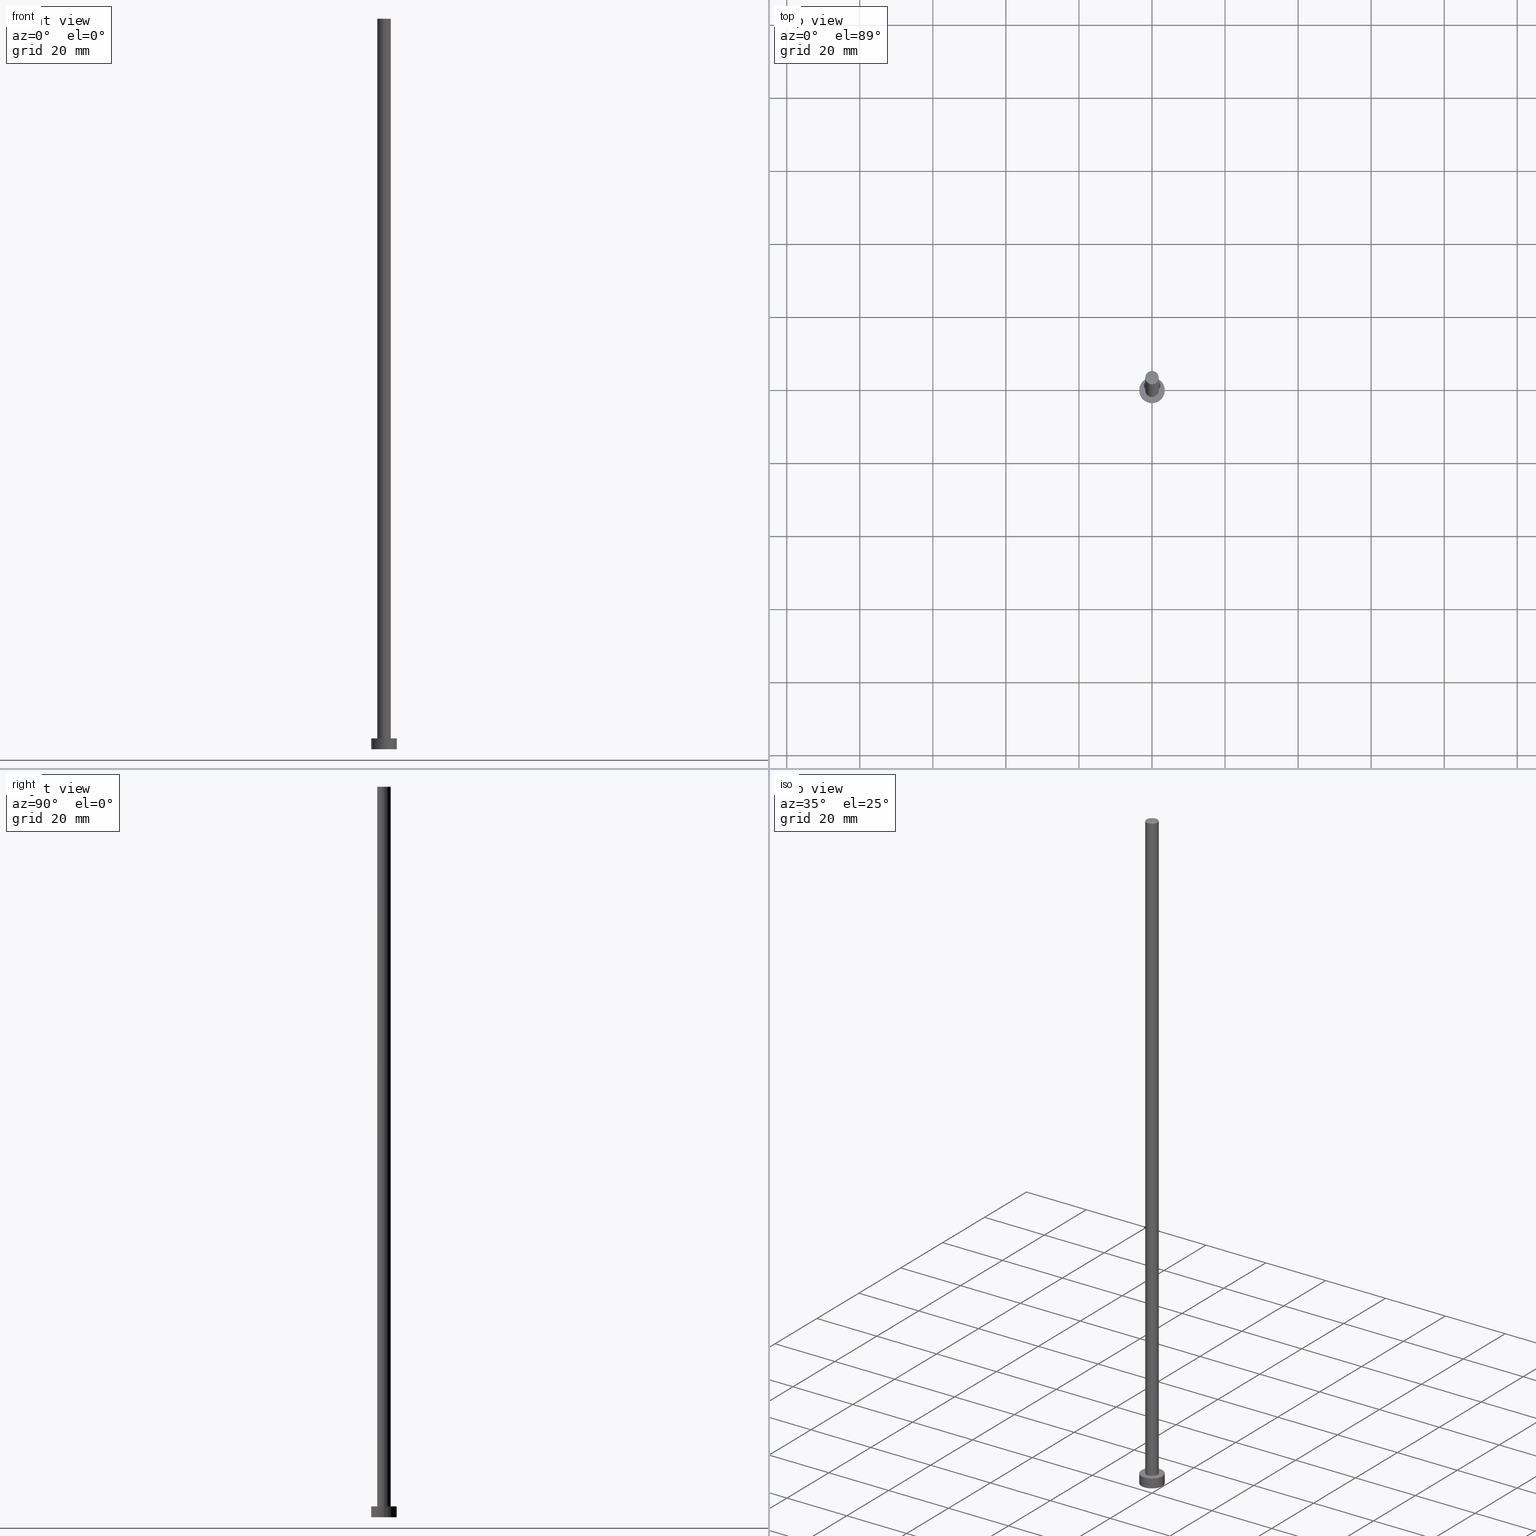
[diagram: canonical four-view strip — front | top / right | iso, engineering-drawing reading convention]
A machine part, canonical four-view strip (front | top / right | iso — engineering-drawing reading convention). The complete STEP part file that produces these views, byte-faithful:
ISO-10303-21;
HEADER;
FILE_DESCRIPTION (( 'STEP AP203' ),
    '1' );
FILE_NAME ('f957.STEP',
    '2026-02-06T12:42:58',
    ( '' ),
    ( '' ),
    'SwSTEP 2.0',
    'SolidWorks 2019',
    '' );
FILE_SCHEMA (( 'CONFIG_CONTROL_DESIGN' ));
ENDSEC;

DATA;
#1 = CALENDAR_DATE ( 2026, 6, 2 ) ;
#2 = APPLICATION_PROTOCOL_DEFINITION ( 'international standard', 'config_control_design', 1994, #201 ) ;
#3 = DIRECTION ( 'NONE',  ( -0.000000000000000000, -0.000000000000000000, -1.000000000000000000 ) ) ;
#4 = DIRECTION ( 'NONE',  ( 1.000000000000000000, 0.000000000000000000, 0.000000000000000000 ) ) ;
#5 =( GEOMETRIC_REPRESENTATION_CONTEXT ( 3 ) GLOBAL_UNCERTAINTY_ASSIGNED_CONTEXT ( ( #173 ) ) GLOBAL_UNIT_ASSIGNED_CONTEXT ( ( #208, #89, #84 ) ) REPRESENTATION_CONTEXT ( 'NONE', 'WORKASPACE' ) );
#6 = AXIS2_PLACEMENT_3D ( 'NONE', #113, #58, #250 ) ;
#7 = EDGE_CURVE ( 'NONE', #94, #248, #81, .T. ) ;
#8 = LINE ( 'NONE', #86, #66 ) ;
#9 = DIRECTION ( 'NONE',  ( 1.000000000000000000, 0.000000000000000000, 0.000000000000000000 ) ) ;
#10 = ORIENTED_EDGE ( 'NONE', *, *, #97, .T. ) ;
#11 = DATE_AND_TIME ( #159, #211 ) ;
#12 = ORIENTED_EDGE ( 'NONE', *, *, #44, .T. ) ;
#13 = FACE_OUTER_BOUND ( 'NONE', #54, .T. ) ;
#14 = ORIENTED_EDGE ( 'NONE', *, *, #180, .F. ) ;
#15 = EDGE_CURVE ( 'NONE', #126, #94, #8, .T. ) ;
#16 = CARTESIAN_POINT ( 'NONE',  ( 0.000000000000000000, 0.000000000000000000, 0.000000000000000000 ) ) ;
#17 = ORIENTED_EDGE ( 'NONE', *, *, #180, .T. ) ;
#18 = FACE_BOUND ( 'NONE', #129, .T. ) ;
#19 = DIRECTION ( 'NONE',  ( 0.000000000000000000, 0.000000000000000000, 1.000000000000000000 ) ) ;
#20 = APPLICATION_CONTEXT ( 'configuration controlled 3d designs of mechanical parts and assemblies' ) ;
#21 = CIRCLE ( 'NONE', #187, 3.500000000000000444 ) ;
#22 = DATE_TIME_ROLE ( 'classification_date' ) ;
#23 = APPROVAL_PERSON_ORGANIZATION ( #40, #124, #99 ) ;
#24 = APPROVAL_STATUS ( 'not_yet_approved' ) ;
#25 = MECHANICAL_CONTEXT ( 'NONE', #20, 'mechanical' ) ;
#26 = APPROVAL_PERSON_ORGANIZATION ( #31, #249, #185 ) ;
#27 = CIRCLE ( 'NONE', #85, 1.850000000000000089 ) ;
#28 = ORIENTED_EDGE ( 'NONE', *, *, #133, .F. ) ;
#29 = APPROVAL_ROLE ( '' ) ;
#30 = ORIENTED_EDGE ( 'NONE', *, *, #15, .F. ) ;
#31 = PERSON_AND_ORGANIZATION ( #109, #138 ) ;
#32 = ORIENTED_EDGE ( 'NONE', *, *, #220, .T. ) ;
#33 = CC_DESIGN_PERSON_AND_ORGANIZATION_ASSIGNMENT ( #226, #207, ( #162 ) ) ;
#34 = DIRECTION ( 'NONE',  ( -0.000000000000000000, -0.000000000000000000, -1.000000000000000000 ) ) ;
#35 = ORIENTED_EDGE ( 'NONE', *, *, #42, .F. ) ;
#36 = DIRECTION ( 'NONE',  ( 0.000000000000000000, 0.000000000000000000, 1.000000000000000000 ) ) ;
#37 = CARTESIAN_POINT ( 'NONE',  ( 1.850000000000000089, 2.265596578422603100E-16, 200.0000000000000000 ) ) ;
#38 = PRODUCT_DEFINITION ( 'NEZN�M�', '', #80, #202 ) ;
#39 = AXIS2_PLACEMENT_3D ( 'NONE', #70, #150, #235 ) ;
#40 = PERSON_AND_ORGANIZATION ( #109, #138 ) ;
#41 = VECTOR ( 'NONE', #131, 1000.000000000000000 ) ;
#42 = EDGE_CURVE ( 'NONE', #248, #94, #222, .T. ) ;
#43 = COORDINATED_UNIVERSAL_TIME_OFFSET ( 1, 0, .AHEAD. ) ;
#44 = EDGE_CURVE ( 'NONE', #213, #69, #189, .T. ) ;
#45 = CALENDAR_DATE ( 2026, 6, 2 ) ;
#46 = DIRECTION ( 'NONE',  ( 1.000000000000000000, 0.000000000000000000, 0.000000000000000000 ) ) ;
#47 = CC_DESIGN_PERSON_AND_ORGANIZATION_ASSIGNMENT ( #247, #110, ( #38 ) ) ;
#48 = PERSON_AND_ORGANIZATION_ROLE ( 'creator' ) ;
#49 = VERTEX_POINT ( 'NONE', #158 ) ;
#50 = PERSON_AND_ORGANIZATION_ROLE ( 'design_owner' ) ;
#51 = ORIENTED_EDGE ( 'NONE', *, *, #7, .F. ) ;
#52 = SECURITY_CLASSIFICATION_LEVEL ( 'unclassified' ) ;
#53 = CARTESIAN_POINT ( 'NONE',  ( 3.500000000000000444, 4.286263797015737088E-16, 3.000000000000000000 ) ) ;
#54 = EDGE_LOOP ( 'NONE', ( #114, #170, #167, #195 ) ) ;
#55 = EDGE_CURVE ( 'NONE', #145, #69, #21, .T. ) ;
#56 = DIRECTION ( 'NONE',  ( -0.000000000000000000, -0.000000000000000000, -1.000000000000000000 ) ) ;
#57 = DIRECTION ( 'NONE',  ( -1.000000000000000000, 0.000000000000000000, 0.000000000000000000 ) ) ;
#58 = DIRECTION ( 'NONE',  ( 0.000000000000000000, 0.000000000000000000, 1.000000000000000000 ) ) ;
#59 = CARTESIAN_POINT ( 'NONE',  ( -3.500000000000000444, 0.000000000000000000, 3.000000000000000000 ) ) ;
#60 = APPROVAL_DATE_TIME ( #62, #124 ) ;
#61 = COORDINATED_UNIVERSAL_TIME_OFFSET ( 1, 0, .AHEAD. ) ;
#62 = DATE_AND_TIME ( #82, #156 ) ;
#63 = APPROVAL_STATUS ( 'not_yet_approved' ) ;
#64 = CALENDAR_DATE ( 2026, 6, 2 ) ;
#65 = DIRECTION ( 'NONE',  ( 0.000000000000000000, 0.000000000000000000, 1.000000000000000000 ) ) ;
#66 = VECTOR ( 'NONE', #186, 1000.000000000000000 ) ;
#67 = DIRECTION ( 'NONE',  ( 0.000000000000000000, 0.000000000000000000, 1.000000000000000000 ) ) ;
#68 = CARTESIAN_POINT ( 'NONE',  ( 0.000000000000000000, 0.000000000000000000, 200.0000000000000000 ) ) ;
#69 = VERTEX_POINT ( 'NONE', #241 ) ;
#70 = CARTESIAN_POINT ( 'NONE',  ( 0.000000000000000000, 0.000000000000000000, 0.000000000000000000 ) ) ;
#71 = CIRCLE ( 'NONE', #215, 3.500000000000000444 ) ;
#72 = DIRECTION ( 'NONE',  ( 1.000000000000000000, 0.000000000000000000, 0.000000000000000000 ) ) ;
#73 = CIRCLE ( 'NONE', #224, 3.500000000000000444 ) ;
#74 = CARTESIAN_POINT ( 'NONE',  ( 1.850000000000000089, 2.265596578422603100E-16, 3.000000000000000000 ) ) ;
#75 = PRODUCT_DEFINITION_SHAPE ( 'NONE', 'NONE',  #38 ) ;
#76 = DIRECTION ( 'NONE',  ( -1.000000000000000000, 0.000000000000000000, 0.000000000000000000 ) ) ;
#77 = CC_DESIGN_SECURITY_CLASSIFICATION ( #162, ( #80 ) ) ;
#78 = APPROVAL ( #63, 'NEUR�EN�' ) ;
#79 = ADVANCED_FACE ( 'NONE', ( #243 ), #242, .T. ) ;
#80 = PRODUCT_DEFINITION_FORMATION_WITH_SPECIFIED_SOURCE ( 'LIBOVOLN�', '', #119, .NOT_KNOWN. ) ;
#81 = CIRCLE ( 'NONE', #184, 1.850000000000000089 ) ;
#82 = CALENDAR_DATE ( 2026, 6, 2 ) ;
#83 = COORDINATED_UNIVERSAL_TIME_OFFSET ( 1, 0, .AHEAD. ) ;
#84 =( NAMED_UNIT ( * ) SI_UNIT ( $, .STERADIAN. ) SOLID_ANGLE_UNIT ( ) );
#85 = AXIS2_PLACEMENT_3D ( 'NONE', #194, #123, #9 ) ;
#86 = CARTESIAN_POINT ( 'NONE',  ( 1.850000000000000089, 2.265596578422603100E-16, 200.0000000000000000 ) ) ;
#87 = CLOSED_SHELL ( 'NONE', ( #165, #88, #79, #115, #104, #176, #229 ) ) ;
#88 = ADVANCED_FACE ( 'NONE', ( #200 ), #171, .T. ) ;
#89 =( NAMED_UNIT ( * ) PLANE_ANGLE_UNIT ( ) SI_UNIT ( $, .RADIAN. ) );
#90 = ORIENTED_EDGE ( 'NONE', *, *, #44, .F. ) ;
#91 = PLANE ( 'NONE',  #39 ) ;
#92 = ORIENTED_EDGE ( 'NONE', *, *, #206, .F. ) ;
#93 = CARTESIAN_POINT ( 'NONE',  ( 0.000000000000000000, 0.000000000000000000, 3.000000000000000000 ) ) ;
#94 = VERTEX_POINT ( 'NONE', #74 ) ;
#95 = CC_DESIGN_APPROVAL ( #249, ( #38 ) ) ;
#96 = DIRECTION ( 'NONE',  ( 0.000000000000000000, 0.000000000000000000, 1.000000000000000000 ) ) ;
#97 = EDGE_CURVE ( 'NONE', #126, #49, #204, .T. ) ;
#98 = LINE ( 'NONE', #137, #41 ) ;
#99 = APPROVAL_ROLE ( '' ) ;
#100 = MANIFOLD_SOLID_BREP ( 'P�idat vysunut�m3', #87 ) ;
#101 = AXIS2_PLACEMENT_3D ( 'NONE', #251, #36, #72 ) ;
#102 = DIRECTION ( 'NONE',  ( 1.000000000000000000, 0.000000000000000000, 0.000000000000000000 ) ) ;
#103 = CIRCLE ( 'NONE', #101, 3.500000000000000444 ) ;
#104 = ADVANCED_FACE ( 'NONE', ( #134 ), #91, .F. ) ;
#105 = CARTESIAN_POINT ( 'NONE',  ( -1.850000000000000089, 0.000000000000000000, 200.0000000000000000 ) ) ;
#106 = EDGE_LOOP ( 'NONE', ( #28, #92, #12, #17 ) ) ;
#107 = PERSON_AND_ORGANIZATION ( #109, #138 ) ;
#108 = ORIENTED_EDGE ( 'NONE', *, *, #133, .T. ) ;
#109 = PERSON ( 'NEUR�EN�', 'NEUR�EN�', 'NEUR�EN�', ('NEUR�EN�'), ('NEUR�EN�'), ('NEUR�EN�') ) ;
#110 = PERSON_AND_ORGANIZATION_ROLE ( 'creator' ) ;
#111 = CC_DESIGN_DATE_AND_TIME_ASSIGNMENT ( #127, #214, ( #38 ) ) ;
#112 = EDGE_LOOP ( 'NONE', ( #216, #108, #218, #90 ) ) ;
#113 = CARTESIAN_POINT ( 'NONE',  ( 0.000000000000000000, 0.000000000000000000, 200.0000000000000000 ) ) ;
#114 = ORIENTED_EDGE ( 'NONE', *, *, #97, .F. ) ;
#115 = ADVANCED_FACE ( 'NONE', ( #18, #135 ), #155, .T. ) ;
#116 = CARTESIAN_POINT ( 'NONE',  ( -3.500000000000000444, 0.000000000000000000, 3.000000000000000000 ) ) ;
#117 = CC_DESIGN_PERSON_AND_ORGANIZATION_ASSIGNMENT ( #143, #125, ( #80 ) ) ;
#118 = DIRECTION ( 'NONE',  ( -0.000000000000000000, -0.000000000000000000, -1.000000000000000000 ) ) ;
#119 = PRODUCT ( 'f957', 'f957', '', ( #25 ) ) ;
#120 = PRODUCT_RELATED_PRODUCT_CATEGORY ( 'detail', '', ( #119 ) ) ;
#121 = DIRECTION ( 'NONE',  ( 0.000000000000000000, 0.000000000000000000, 1.000000000000000000 ) ) ;
#122 = APPROVAL_PERSON_ORGANIZATION ( #141, #78, #29 ) ;
#123 = DIRECTION ( 'NONE',  ( 0.000000000000000000, 0.000000000000000000, 1.000000000000000000 ) ) ;
#124 = APPROVAL ( #24, 'NEUR�EN�' ) ;
#125 = PERSON_AND_ORGANIZATION_ROLE ( 'design_supplier' ) ;
#126 = VERTEX_POINT ( 'NONE', #37 ) ;
#127 = DATE_AND_TIME ( #64, #199 ) ;
#128 = VERTEX_POINT ( 'NONE', #53 ) ;
#129 = EDGE_LOOP ( 'NONE', ( #35, #51 ) ) ;
#130 = AXIS2_PLACEMENT_3D ( 'NONE', #164, #65, #102 ) ;
#131 = DIRECTION ( 'NONE',  ( -0.000000000000000000, -0.000000000000000000, -1.000000000000000000 ) ) ;
#132 = EDGE_LOOP ( 'NONE', ( #14, #234 ) ) ;
#133 = EDGE_CURVE ( 'NONE', #128, #145, #98, .T. ) ;
#134 = FACE_OUTER_BOUND ( 'NONE', #132, .T. ) ;
#135 = FACE_OUTER_BOUND ( 'NONE', #190, .T. ) ;
#136 = LOCAL_TIME ( 13, 42, 58.00000000000000000, #157 ) ;
#137 = CARTESIAN_POINT ( 'NONE',  ( 3.500000000000000444, 4.286263797015737088E-16, 3.000000000000000000 ) ) ;
#138 = ORGANIZATION ( 'NEUR�EN�', 'NEUR�EN�', '' ) ;
#139 = AXIS2_PLACEMENT_3D ( 'NONE', #160, #56, #237 ) ;
#140 = CARTESIAN_POINT ( 'NONE',  ( 0.000000000000000000, 0.000000000000000000, 0.000000000000000000 ) ) ;
#141 = PERSON_AND_ORGANIZATION ( #109, #138 ) ;
#142 = SHAPE_DEFINITION_REPRESENTATION ( #75, #169 ) ;
#143 = PERSON_AND_ORGANIZATION ( #109, #138 ) ;
#144 = APPROVAL_DATE_TIME ( #225, #78 ) ;
#145 = VERTEX_POINT ( 'NONE', #221 ) ;
#146 = APPLICATION_PROTOCOL_DEFINITION ( 'international standard', 'config_control_design', 1994, #20 ) ;
#147 = ORIENTED_EDGE ( 'NONE', *, *, #238, .F. ) ;
#148 = COORDINATED_UNIVERSAL_TIME_OFFSET ( 1, 0, .AHEAD. ) ;
#149 = EDGE_LOOP ( 'NONE', ( #30, #147, #193, #197 ) ) ;
#150 = DIRECTION ( 'NONE',  ( 0.000000000000000000, 0.000000000000000000, 1.000000000000000000 ) ) ;
#151 = AXIS2_PLACEMENT_3D ( 'NONE', #166, #245, #46 ) ;
#152 = VECTOR ( 'NONE', #182, 1000.000000000000000 ) ;
#153 = FACE_OUTER_BOUND ( 'NONE', #149, .T. ) ;
#154 = LINE ( 'NONE', #105, #175 ) ;
#155 = PLANE ( 'NONE',  #252 ) ;
#156 = LOCAL_TIME ( 13, 42, 58.00000000000000000, #43 ) ;
#157 = COORDINATED_UNIVERSAL_TIME_OFFSET ( 1, 0, .AHEAD. ) ;
#158 = CARTESIAN_POINT ( 'NONE',  ( -1.850000000000000089, 0.000000000000000000, 200.0000000000000000 ) ) ;
#159 = CALENDAR_DATE ( 2026, 6, 2 ) ;
#160 = CARTESIAN_POINT ( 'NONE',  ( 0.000000000000000000, 0.000000000000000000, 3.000000000000000000 ) ) ;
#161 = CC_DESIGN_DATE_AND_TIME_ASSIGNMENT ( #205, #22, ( #162 ) ) ;
#162 = SECURITY_CLASSIFICATION ( '', '', #52 ) ;
#163 = AXIS2_PLACEMENT_3D ( 'NONE', #196, #34, #76 ) ;
#164 = CARTESIAN_POINT ( 'NONE',  ( 0.000000000000000000, 0.000000000000000000, 3.000000000000000000 ) ) ;
#165 = ADVANCED_FACE ( 'NONE', ( #13 ), #217, .T. ) ;
#166 = CARTESIAN_POINT ( 'NONE',  ( 0.000000000000000000, 0.000000000000000000, 0.000000000000000000 ) ) ;
#167 = ORIENTED_EDGE ( 'NONE', *, *, #7, .T. ) ;
#168 = APPROVAL_DATE_TIME ( #11, #249 ) ;
#169 = ADVANCED_BREP_SHAPE_REPRESENTATION ( 'f957', ( #100, #151 ), #5 ) ;
#170 = ORIENTED_EDGE ( 'NONE', *, *, #15, .T. ) ;
#171 = CYLINDRICAL_SURFACE ( 'NONE', #177, 3.500000000000000444 ) ;
#172 = EDGE_LOOP ( 'NONE', ( #230, #10 ) ) ;
#173 = UNCERTAINTY_MEASURE_WITH_UNIT (LENGTH_MEASURE( 1.000000000000000082E-05 ), #208, 'distance_accuracy_value', 'NONE');
#174 = DIRECTION ( 'NONE',  ( 1.000000000000000000, 0.000000000000000000, 0.000000000000000000 ) ) ;
#175 = VECTOR ( 'NONE', #3, 1000.000000000000000 ) ;
#176 = ADVANCED_FACE ( 'NONE', ( #153 ), #254, .T. ) ;
#177 = AXIS2_PLACEMENT_3D ( 'NONE', #93, #239, #57 ) ;
#178 = DIRECTION ( 'NONE',  ( 1.000000000000000000, 0.000000000000000000, 0.000000000000000000 ) ) ;
#179 = CARTESIAN_POINT ( 'NONE',  ( 0.000000000000000000, 0.000000000000000000, 3.000000000000000000 ) ) ;
#180 = EDGE_CURVE ( 'NONE', #69, #145, #71, .T. ) ;
#181 = CC_DESIGN_PERSON_AND_ORGANIZATION_ASSIGNMENT ( #107, #48, ( #80 ) ) ;
#182 = DIRECTION ( 'NONE',  ( -0.000000000000000000, -0.000000000000000000, -1.000000000000000000 ) ) ;
#183 = CC_DESIGN_PERSON_AND_ORGANIZATION_ASSIGNMENT ( #231, #50, ( #119 ) ) ;
#184 = AXIS2_PLACEMENT_3D ( 'NONE', #246, #67, #4 ) ;
#185 = APPROVAL_ROLE ( '' ) ;
#186 = DIRECTION ( 'NONE',  ( -0.000000000000000000, -0.000000000000000000, -1.000000000000000000 ) ) ;
#187 = AXIS2_PLACEMENT_3D ( 'NONE', #140, #255, #203 ) ;
#188 = AXIS2_PLACEMENT_3D ( 'NONE', #240, #118, #223 ) ;
#189 = LINE ( 'NONE', #59, #152 ) ;
#190 = EDGE_LOOP ( 'NONE', ( #232, #32 ) ) ;
#191 = CC_DESIGN_APPROVAL ( #124, ( #162 ) ) ;
#192 = DIRECTION ( 'NONE',  ( 1.000000000000000000, 0.000000000000000000, -0.000000000000000000 ) ) ;
#193 = ORIENTED_EDGE ( 'NONE', *, *, #227, .T. ) ;
#194 = CARTESIAN_POINT ( 'NONE',  ( 0.000000000000000000, 0.000000000000000000, 200.0000000000000000 ) ) ;
#195 = ORIENTED_EDGE ( 'NONE', *, *, #227, .F. ) ;
#196 = CARTESIAN_POINT ( 'NONE',  ( 0.000000000000000000, 0.000000000000000000, 200.0000000000000000 ) ) ;
#197 = ORIENTED_EDGE ( 'NONE', *, *, #42, .T. ) ;
#198 = CARTESIAN_POINT ( 'NONE',  ( 0.000000000000000000, 0.000000000000000000, 3.000000000000000000 ) ) ;
#199 = LOCAL_TIME ( 13, 42, 58.00000000000000000, #61 ) ;
#200 = FACE_OUTER_BOUND ( 'NONE', #112, .T. ) ;
#201 = APPLICATION_CONTEXT ( 'configuration controlled 3d designs of mechanical parts and assemblies' ) ;
#202 = DESIGN_CONTEXT ( 'detailed design', #201, 'design' ) ;
#203 = DIRECTION ( 'NONE',  ( 1.000000000000000000, 0.000000000000000000, 0.000000000000000000 ) ) ;
#204 = CIRCLE ( 'NONE', #6, 1.850000000000000089 ) ;
#205 = DATE_AND_TIME ( #1, #136 ) ;
#206 = EDGE_CURVE ( 'NONE', #213, #128, #103, .T. ) ;
#207 = PERSON_AND_ORGANIZATION_ROLE ( 'classification_officer' ) ;
#208 =( LENGTH_UNIT ( ) NAMED_UNIT ( * ) SI_UNIT ( .MILLI., .METRE. ) );
#209 = CC_DESIGN_APPROVAL ( #78, ( #80 ) ) ;
#210 = CARTESIAN_POINT ( 'NONE',  ( -1.850000000000000089, 0.000000000000000000, 3.000000000000000000 ) ) ;
#211 = LOCAL_TIME ( 13, 42, 58.00000000000000000, #83 ) ;
#212 = FACE_OUTER_BOUND ( 'NONE', #172, .T. ) ;
#213 = VERTEX_POINT ( 'NONE', #116 ) ;
#214 = DATE_TIME_ROLE ( 'creation_date' ) ;
#215 = AXIS2_PLACEMENT_3D ( 'NONE', #16, #219, #174 ) ;
#216 = ORIENTED_EDGE ( 'NONE', *, *, #220, .F. ) ;
#217 = CYLINDRICAL_SURFACE ( 'NONE', #188, 1.850000000000000089 ) ;
#218 = ORIENTED_EDGE ( 'NONE', *, *, #55, .T. ) ;
#219 = DIRECTION ( 'NONE',  ( 0.000000000000000000, 0.000000000000000000, 1.000000000000000000 ) ) ;
#220 = EDGE_CURVE ( 'NONE', #128, #213, #73, .T. ) ;
#221 = CARTESIAN_POINT ( 'NONE',  ( 3.500000000000000444, 4.286263797015737088E-16, 0.000000000000000000 ) ) ;
#222 = CIRCLE ( 'NONE', #130, 1.850000000000000089 ) ;
#223 = DIRECTION ( 'NONE',  ( -1.000000000000000000, 0.000000000000000000, 0.000000000000000000 ) ) ;
#224 = AXIS2_PLACEMENT_3D ( 'NONE', #198, #96, #178 ) ;
#225 = DATE_AND_TIME ( #45, #244 ) ;
#226 = PERSON_AND_ORGANIZATION ( #109, #138 ) ;
#227 = EDGE_CURVE ( 'NONE', #49, #248, #154, .T. ) ;
#228 = APPROVAL_STATUS ( 'not_yet_approved' ) ;
#229 = ADVANCED_FACE ( 'NONE', ( #212 ), #233, .T. ) ;
#230 = ORIENTED_EDGE ( 'NONE', *, *, #238, .T. ) ;
#231 = PERSON_AND_ORGANIZATION ( #109, #138 ) ;
#232 = ORIENTED_EDGE ( 'NONE', *, *, #206, .T. ) ;
#233 = PLANE ( 'NONE',  #236 ) ;
#234 = ORIENTED_EDGE ( 'NONE', *, *, #55, .F. ) ;
#235 = DIRECTION ( 'NONE',  ( 1.000000000000000000, 0.000000000000000000, -0.000000000000000000 ) ) ;
#236 = AXIS2_PLACEMENT_3D ( 'NONE', #68, #121, #192 ) ;
#237 = DIRECTION ( 'NONE',  ( -1.000000000000000000, 0.000000000000000000, 0.000000000000000000 ) ) ;
#238 = EDGE_CURVE ( 'NONE', #49, #126, #27, .T. ) ;
#239 = DIRECTION ( 'NONE',  ( -0.000000000000000000, -0.000000000000000000, -1.000000000000000000 ) ) ;
#240 = CARTESIAN_POINT ( 'NONE',  ( 0.000000000000000000, 0.000000000000000000, 200.0000000000000000 ) ) ;
#241 = CARTESIAN_POINT ( 'NONE',  ( -3.500000000000000444, 0.000000000000000000, 0.000000000000000000 ) ) ;
#242 = CYLINDRICAL_SURFACE ( 'NONE', #139, 3.500000000000000444 ) ;
#243 = FACE_OUTER_BOUND ( 'NONE', #106, .T. ) ;
#244 = LOCAL_TIME ( 13, 42, 58.00000000000000000, #148 ) ;
#245 = DIRECTION ( 'NONE',  ( 0.000000000000000000, 0.000000000000000000, 1.000000000000000000 ) ) ;
#246 = CARTESIAN_POINT ( 'NONE',  ( 0.000000000000000000, 0.000000000000000000, 3.000000000000000000 ) ) ;
#247 = PERSON_AND_ORGANIZATION ( #109, #138 ) ;
#248 = VERTEX_POINT ( 'NONE', #210 ) ;
#249 = APPROVAL ( #228, 'NEUR�EN�' ) ;
#250 = DIRECTION ( 'NONE',  ( 1.000000000000000000, 0.000000000000000000, 0.000000000000000000 ) ) ;
#251 = CARTESIAN_POINT ( 'NONE',  ( 0.000000000000000000, 0.000000000000000000, 3.000000000000000000 ) ) ;
#252 = AXIS2_PLACEMENT_3D ( 'NONE', #179, #19, #253 ) ;
#253 = DIRECTION ( 'NONE',  ( 1.000000000000000000, 0.000000000000000000, -0.000000000000000000 ) ) ;
#254 = CYLINDRICAL_SURFACE ( 'NONE', #163, 1.850000000000000089 ) ;
#255 = DIRECTION ( 'NONE',  ( 0.000000000000000000, 0.000000000000000000, 1.000000000000000000 ) ) ;
ENDSEC;
END-ISO-10303-21;
